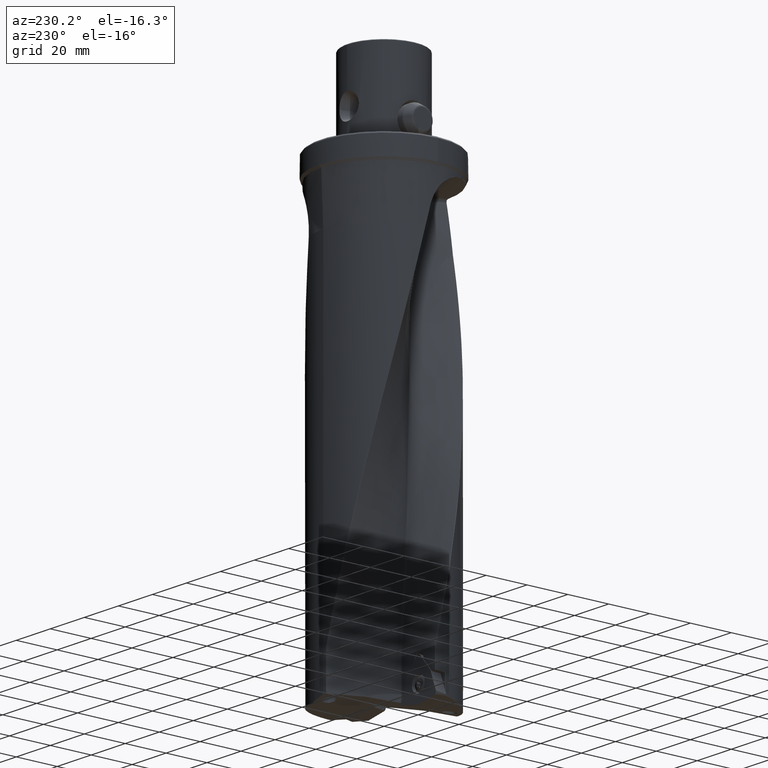
[diagram: clean part render]
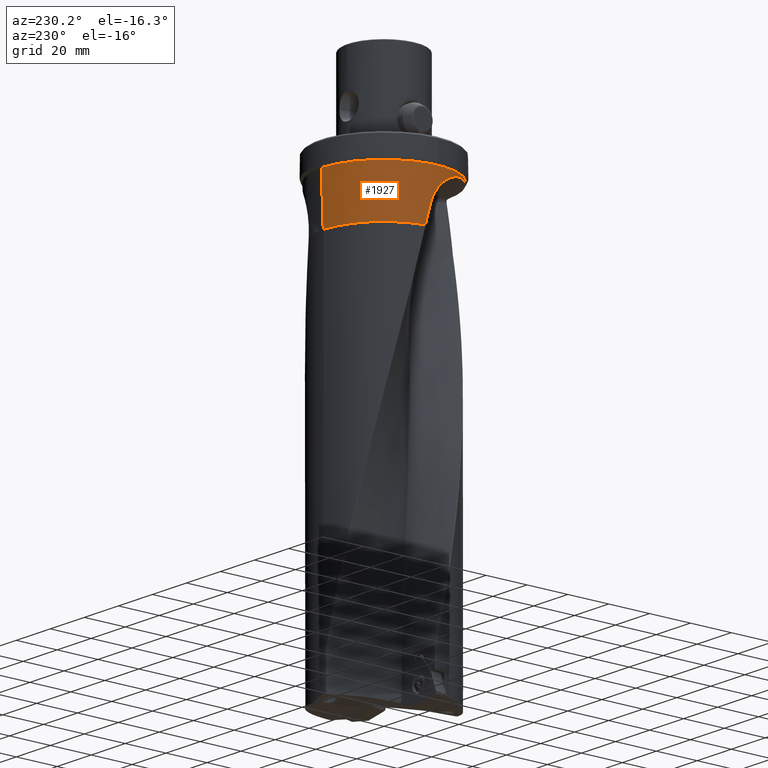
[diagram: same view with one face highlighted and labeled with its STEP entity id]
A machine part, auxiliary view. The second image highlights one B-rep face of the part: STEP entity #1927.
In plain terms, the highlighted conical surface has half-angle 2.416 deg.
Its self-contained STEP definition (entity closure, byte-faithful):
#1927=ADVANCED_FACE('NONE',(#5471),#5472,.T.);
#2065=EDGE_CURVE('NONE',#2247,#4039,#5630,.F.);
#2247=VERTEX_POINT('NONE',#5833);
#2441=EDGE_CURVE('NONE',#3365,#5253,#6042,.F.);
#2505=EDGE_CURVE('NONE',#2555,#5253,#6117,.T.);
#2555=VERTEX_POINT('NONE',#6176);
#2693=VERTEX_POINT('NONE',#6323);
#2729=EDGE_CURVE('NONE',#4039,#2555,#6365,.T.);
#3127=EDGE_CURVE('NONE',#2693,#3527,#6805,.F.);
#3365=VERTEX_POINT('NONE',#7067);
#3477=EDGE_CURVE('NONE',#3765,#2693,#7192,.F.);
#3489=VERTEX_POINT('NONE',#7205);
#3527=VERTEX_POINT('NONE',#7248);
#3649=EDGE_CURVE('NONE',#3527,#2247,#7380,.F.);
#3709=EDGE_CURVE('NONE',#3489,#3765,#7446,.F.);
#3765=VERTEX_POINT('NONE',#7507);
#4039=VERTEX_POINT('NONE',#7814);
#4701=EDGE_CURVE('NONE',#3489,#3365,#8555,.T.);
#5253=VERTEX_POINT('NONE',#9157);
#5471=FACE_OUTER_BOUND('',#10090,.T.);
#5472=CONICAL_SURFACE('',#10091,29.7375,0.0421624984642338);
#5630=B_SPLINE_CURVE_WITH_KNOTS('',3,(#13837,#13838,#13839,#13840),.UNSPECIFIED.,.F.,.F.,(4,4),(0.0,1.0),.UNSPECIFIED.);
#5833=CARTESIAN_POINT('',(-1.31103277451401,-30.6887470115691,-11.7884300015391));
#6042=CIRCLE('',#20297,30.75);
#6117=LINE('',#20500,#20501);
#6176=CARTESIAN_POINT('',(-6.05867815158466E-012,-30.6922188170753,-12.3696280396974));
#6323=CARTESIAN_POINT('',(-30.0088307779711,2.28326248473922,-26.5124626189832));
#6365=B_SPLINE_CURVE_WITH_KNOTS('',3,(#24460,#24461,#24462,#24463,#24464,#24465,#24466,#24467,#24468,#24469),.UNSPECIFIED.,.F.,.F.,(4,3,3,4),(0.0,0.113041672751306,0.339125018253919,0.565208363756531),.UNSPECIFIED.);
#6805=B_SPLINE_CURVE_WITH_KNOTS('',3,(#30311,#30312,#30313,#30314,#30315,#30316,#30317,#30318,#30319,#30320,#30321,#30322,#30323,#30324,#30325,#30326,#30327,#30328,#30329,#30330,#30331,#30332,#30333,#30334,#30335),.UNSPECIFIED.,.F.,.F.,(4,3,3,3,3,3,3,3,4),(0.0,0.0670076703321341,0.241348011492722,0.309817107181685,0.471310477697568,0.607214592674338,0.751695870876587,0.908716410677128,1.0),.UNSPECIFIED.);
#7067=CARTESIAN_POINT('',(0.0,30.75,-11.0));
#7192=B_SPLINE_CURVE_WITH_KNOTS('',3,(#31920,#31921,#31922,#31923),.UNSPECIFIED.,.F.,.F.,(4,4),(0.0,1.0),.UNSPECIFIED.);
#7205=CARTESIAN_POINT('',(0.0,29.7376777412948,-34.9957868730119));
#7248=CARTESIAN_POINT('',(-22.0390845252709,-21.3961854862943,-11.7884300015391));
#7380=CIRCLE('',#34343,30.7167381093101);
#7446=CIRCLE('',#34459,29.7376777412948);
#7507=CARTESIAN_POINT('',(-29.43282558729,4.24714673554688,-34.9957868730119));
#7814=CARTESIAN_POINT('',(-1.03192657532884,-30.6993994667497,-11.7884300015391));
#8555=LINE('',#48159,#48160);
#9157=CARTESIAN_POINT('',(-3.76566453800381E-015,-30.75,-11.0));
#10090=EDGE_LOOP('',(#52681,#52682,#52683,#52684,#52685,#52686,#52687,#52688,#52689));
#10091=AXIS2_PLACEMENT_3D('',#52690,#52691,#52692);
#13837=CARTESIAN_POINT('',(-1.03192657532884,-30.6993994667497,-11.7884300015391));
#13838=CARTESIAN_POINT('',(-1.1249774690762,-30.6962716632166,-11.7884300015391));
#13839=CARTESIAN_POINT('',(-1.21801416871016,-30.6927207952105,-11.7884300015391));
#13840=CARTESIAN_POINT('',(-1.31103277451402,-30.6887470115691,-11.7884300015391));
#20297=AXIS2_PLACEMENT_3D('',#53349,#53350,#53351);
#20500=CARTESIAN_POINT('',(-3.64167314467929E-015,-29.7375,-35.0));
#20501=VECTOR('',#53450,1000.0);
#24460=CARTESIAN_POINT('',(-1.03192657532884,-30.6993994667497,-11.7884300015391));
#24461=CARTESIAN_POINT('',(-0.949594573107254,-30.7021536434483,-11.7887456295141));
#24462=CARTESIAN_POINT('',(-0.867010022221489,-30.7042316096937,-11.7972976746185));
#24463=CARTESIAN_POINT('',(-0.786225471375243,-30.7055869910512,-11.814195970686));
#24464=CARTESIAN_POINT('',(-0.624656369682524,-30.7082977537661,-11.8479925628211));
#24465=CARTESIAN_POINT('',(-0.470204799332052,-30.7080861497828,-11.9151991510862));
#24466=CARTESIAN_POINT('',(-0.335374325048579,-30.7055444557026,-12.0103484213784));
#24467=CARTESIAN_POINT('',(-0.200543850765118,-30.7030027616225,-12.1054976916705));
#24468=CARTESIAN_POINT('',(-0.0855409789254024,-30.6981681370573,-12.2286071216049));
#24469=CARTESIAN_POINT('',(-6.05551553075859E-012,-30.6922188170753,-12.3696280396974));
#30311=CARTESIAN_POINT('',(-22.0390845252709,-21.3961854862942,-11.7884300015391));
#30312=CARTESIAN_POINT('',(-22.5447266385337,-20.8753501588643,-11.7884300013609));
#30313=CARTESIAN_POINT('',(-23.0319286035107,-20.3361768072796,-11.794294403101));
#30314=CARTESIAN_POINT('',(-23.4989367477317,-19.7803666542305,-11.8096774851521));
#30315=CARTESIAN_POINT('',(-24.7139970353778,-18.3342615856197,-11.8497011385579));
#30316=CARTESIAN_POINT('',(-25.7929671067362,-16.7728370378295,-11.9517060702322));
#30317=CARTESIAN_POINT('',(-26.7080373941565,-15.1378807882137,-12.1910932971584));
#30318=CARTESIAN_POINT('',(-27.0674151185226,-14.4957805424703,-12.285108410574));
#30319=CARTESIAN_POINT('',(-27.4015512369398,-13.8426415747071,-12.4003141766721));
#30320=CARTESIAN_POINT('',(-27.7092124584836,-13.1821231043517,-12.5408953893031));
#30321=CARTESIAN_POINT('',(-28.4348719278281,-11.6242033890063,-12.8724746752649));
#30322=CARTESIAN_POINT('',(-29.009708067861,-10.0256106364115,-13.351513076168));
#30323=CARTESIAN_POINT('',(-29.4285334049943,-8.46671290531188,-14.0275247421746));
#30324=CARTESIAN_POINT('',(-29.78099423104,-7.15482861057202,-14.596419718415));
#30325=CARTESIAN_POINT('',(-30.0227635878106,-5.87326485804748,-15.305404345879));
#30326=CARTESIAN_POINT('',(-30.1709718474102,-4.68333886203761,-16.1603499327029));
#30327=CARTESIAN_POINT('',(-30.3285338078463,-3.41831440785549,-17.0692527367041));
#30328=CARTESIAN_POINT('',(-30.3811320593497,-2.25823772667803,-18.1418169357355));
#30329=CARTESIAN_POINT('',(-30.371512929624,-1.26238819134606,-19.3499351035838));
#30330=CARTESIAN_POINT('',(-30.3610589735077,-0.180110725755993,-20.662903601778));
#30331=CARTESIAN_POINT('',(-30.2792810291303,0.708548135882913,-22.1332392055325));
#30332=CARTESIAN_POINT('',(-30.1832949543078,1.36770197442383,-23.6988670276332));
#30333=CARTESIAN_POINT('',(-30.1274936340095,1.75089979283916,-24.6090417558989));
#30334=CARTESIAN_POINT('',(-30.0667257935512,2.05664373748026,-25.5516268512586));
#30335=CARTESIAN_POINT('',(-30.0088307779711,2.28326248473923,-26.5124626189832));
#31920=CARTESIAN_POINT('',(-30.0088307779711,2.28326248473923,-26.5124626189832));
#31921=CARTESIAN_POINT('',(-29.8385266440258,2.94988480190989,-29.3388597057577));
#31922=CARTESIAN_POINT('',(-29.6461581024246,3.6044035185191,-32.1667800333476));
#31923=CARTESIAN_POINT('',(-29.43282558729,4.24714673554688,-34.9957868730119));
#34343=AXIS2_PLACEMENT_3D('',#54906,#54907,#54908);
#34459=AXIS2_PLACEMENT_3D('',#54965,#54966,#54967);
#48159=CARTESIAN_POINT('',(0.0,29.7375,-35.0));
#48160=VECTOR('',#56313,1000.0);
#52681=ORIENTED_EDGE('',*,*,#2729,.T.);
#52682=ORIENTED_EDGE('',*,*,#2505,.T.);
#52683=ORIENTED_EDGE('',*,*,#2441,.F.);
#52684=ORIENTED_EDGE('',*,*,#4701,.F.);
#52685=ORIENTED_EDGE('',*,*,#3709,.T.);
#52686=ORIENTED_EDGE('',*,*,#3477,.T.);
#52687=ORIENTED_EDGE('',*,*,#3127,.T.);
#52688=ORIENTED_EDGE('',*,*,#3649,.T.);
#52689=ORIENTED_EDGE('',*,*,#2065,.T.);
#52690=CARTESIAN_POINT('',(0.0,0.0,-35.0));
#52691=DIRECTION('',(-0.0,-0.0,1.0));
#52692=DIRECTION('',(0.0,1.0,0.0));
#53349=CARTESIAN_POINT('',(0.0,0.0,-11.0));
#53350=DIRECTION('',(0.0,0.0,-1.0));
#53351=DIRECTION('',(0.0,1.0,0.0));
#53450=DIRECTION('',(-5.16171672377321E-018,-0.0421500076956312,0.999111293526031));
#54906=CARTESIAN_POINT('',(0.0,0.0,-11.7884300015391));
#54907=DIRECTION('',(0.0,0.0,-1.0));
#54908=DIRECTION('',(0.0,1.0,0.0));
#54965=CARTESIAN_POINT('',(0.0,0.0,-34.9957868730119));
#54966=DIRECTION('',(0.0,0.0,-1.0));
#54967=DIRECTION('',(0.0,1.0,0.0));
#56313=DIRECTION('',(0.0,0.0421500076956312,0.999111293526031));